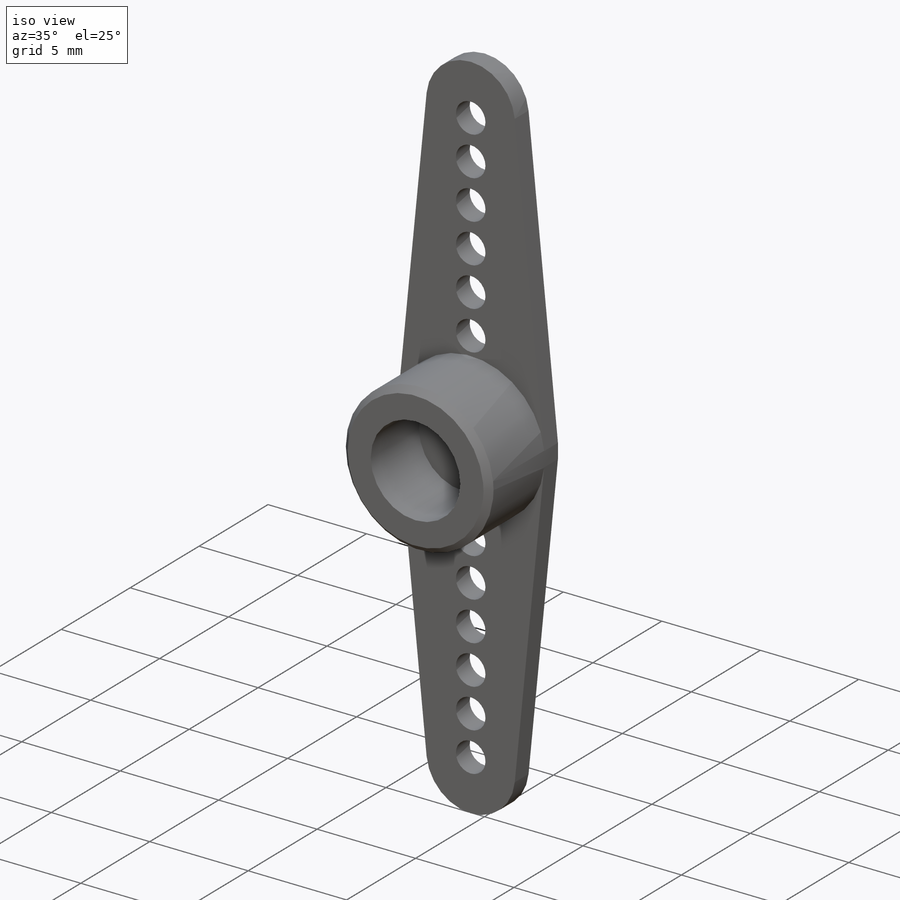
[diagram: iso view]
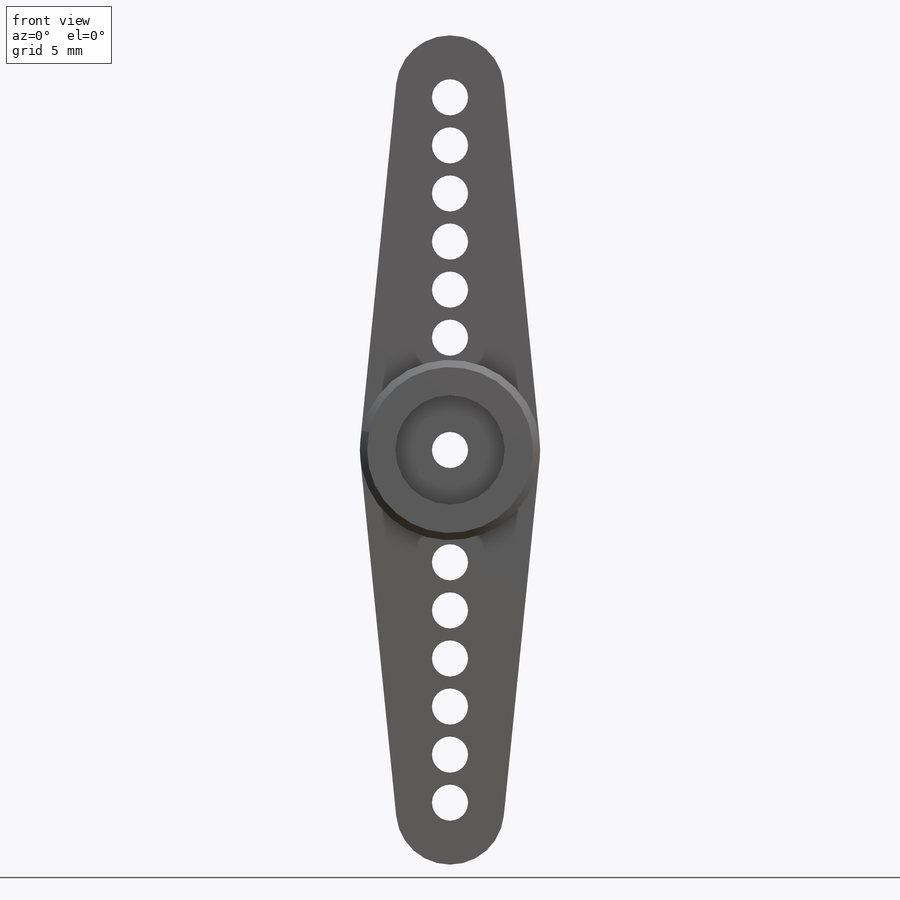
[diagram: front view]
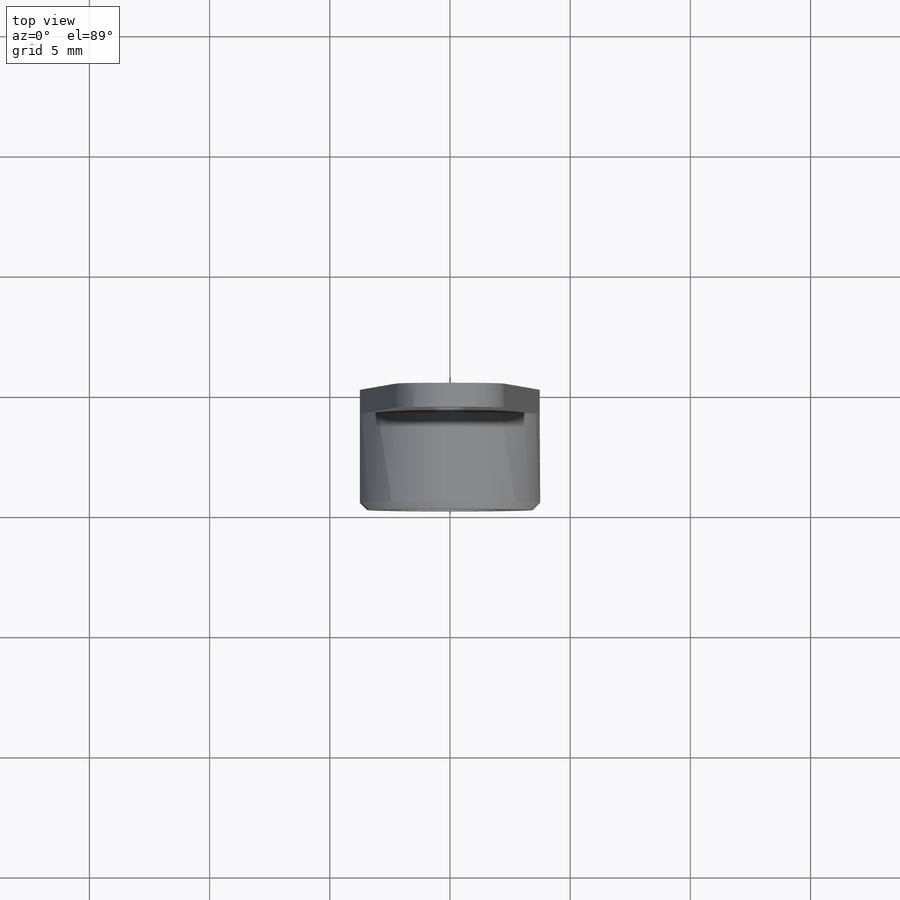
[diagram: top view]
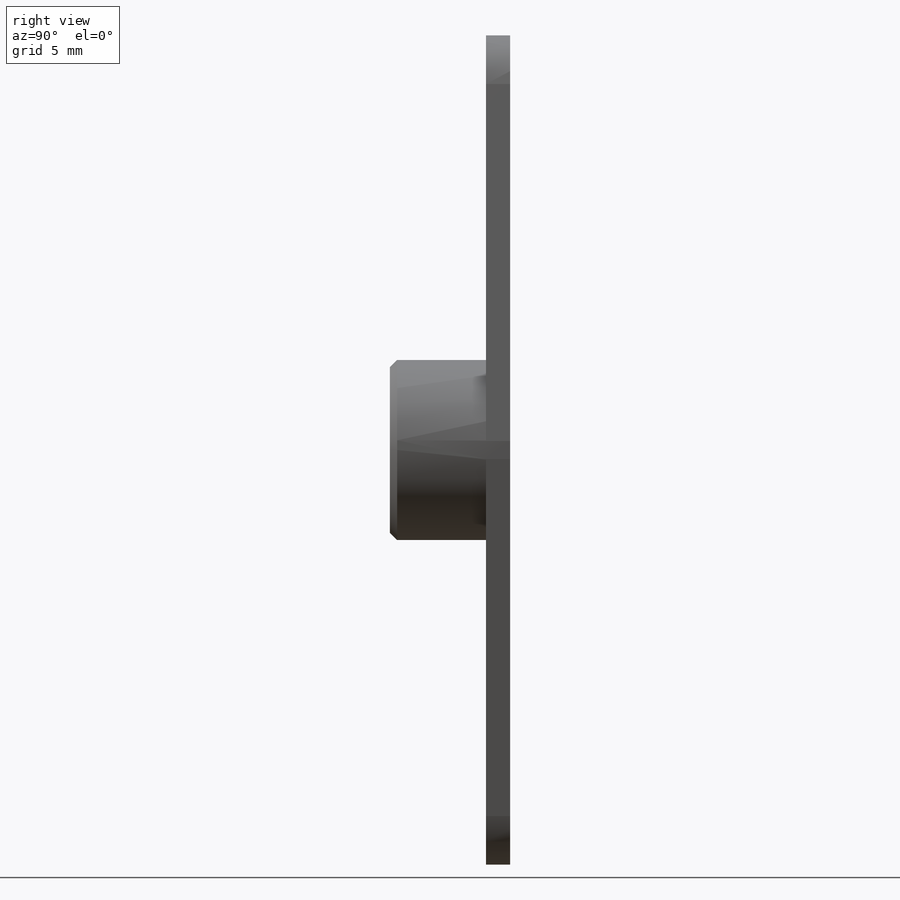
[diagram: right view]
SOLIDWORKS PART (.sldprt)
format: sldprt  version: not decoded by parser v0  size: 602,112 bytes
history: native  units: mm
features: sketch x7, cut_extrude x5, plane x3, extrude x2, material x1, chamfer x1, mirror x1 (+10 scaffold rows collapsed)
feature tree (30):
  scaffold x10  (default folders/planes/origin — collapsed)
  material  "Matériau <non spécifié>"
  plane  "Plan de face"
  plane  "Plan de dessus"
  plane  "Plan de droite"
  sketch  "Esquisse1"  dims[c1.D1=7.5mm c1.D3=~6.196309mm c2.D3=4.5mm c2.D2=15.0mm]
  extrude  "Boss.-Extru.1"  Depth=1mm
  sketch  "Esquisse2"
  extrude  "Boss.-Extru.2"  Depth=4mm
  sketch  "Esquisse3"  dims[D1=4.55mm]
  cut_extrude  "Enlèv. mat.-Extru.1"  Depth=3.5mm
  sketch  "Esquisse4"  dims[D1=4.0mm]
  cut_extrude  "Enlèv. mat.-Extru.2"  Depth=0.8mm
  sketch  "Esquisse5"  dims[D1=1.5mm]
  cut_extrude  "Enlèv. mat.-Extru.3"  Depth=4.8mm
  sketch  "Esquisse6"  dims[D1=1.5mm D2=6.0]
  cut_extrude  "Enlèv. mat.-Extru.4"  Depth=4.8mm
  chamfer  "Chanfrein1"  Distance=0.3mm Angle=45deg
  sketch  "Esquisse7"
  cut_extrude  "Enlèv. mat.-Extru.5"  Depth=10mm
  mirror  "Symétrie1"
decode coverage: 13 of 16 modeling features carry decoded parameters
note: ~ marks probable driven/reference dimensions
note: suppression state not decoded; provenance and decode notes live in map.json
